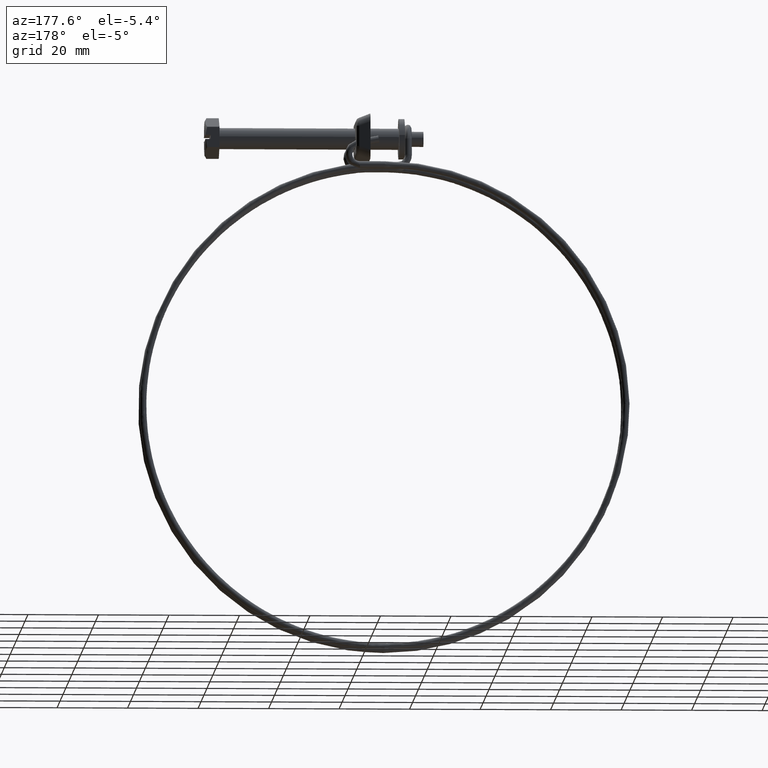
[diagram: clean part render]
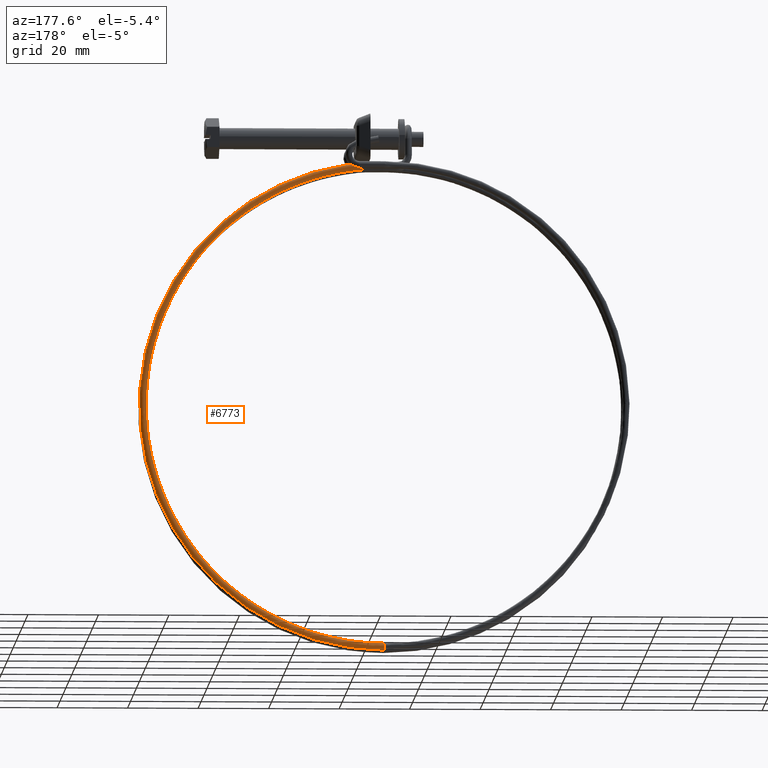
[diagram: same view with one face highlighted and labeled with its STEP entity id]
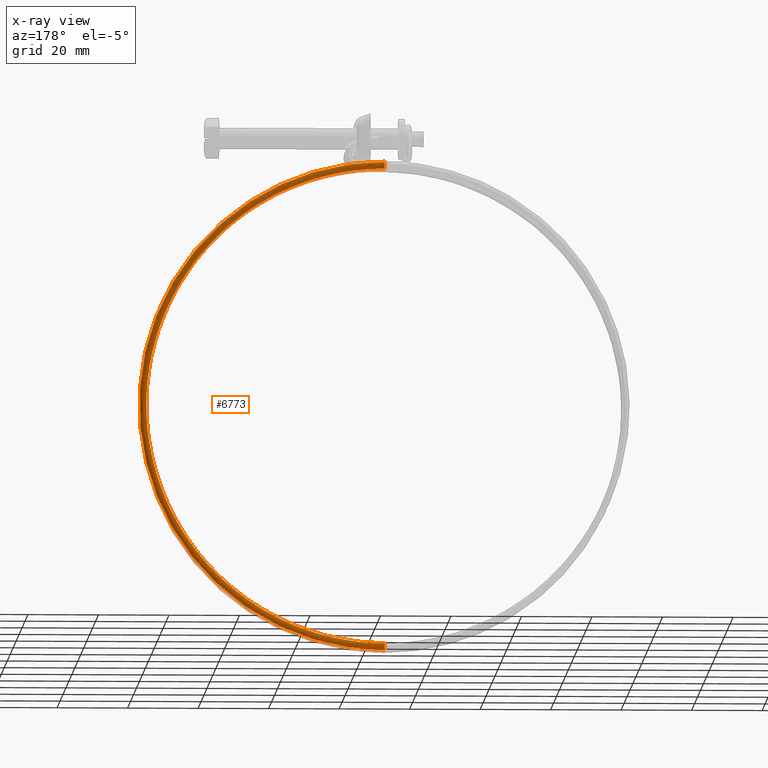
[diagram: x-ray of the same camera — body ghosted, the highlighted face saturated]
A machine part, auxiliary view. The second image highlights one B-rep face of the part: STEP entity #6773.
The next image is the same camera in x-ray: the body ghosted, the highlighted face saturated — about 0% of this face is hidden behind the body in this view.
In plain terms, the highlighted face is a freeform B-spline surface patch.
Its self-contained STEP definition (entity closure, byte-faithful):
#4836=CARTESIAN_POINT('',(-46.800000081168392,5.133887822061459,-8.401937985322835));
#4837=VERTEX_POINT('',#4836);
#4843=CARTESIAN_POINT('',(-46.800000147059912,4.300002000001339,-8.850001000000098));
#4844=VERTEX_POINT('',#4843);
#4845=CARTESIAN_POINT('',(-46.800000081168392,5.133887822061459,-8.401937985322835));
#4846=CARTESIAN_POINT('',(-46.800000147059976,4.837321382124287,-8.850001000000098));
#4847=CARTESIAN_POINT('',(-46.800000147059912,4.300002000001339,-8.850001000000098));
#4855=(BOUNDED_CURVE()B_SPLINE_CURVE(2,(#4845,#4846,#4847),.UNSPECIFIED.,.F.,.U.)B_SPLINE_CURVE_WITH_KNOTS((3,3),(0.344612684639767,0.500000000000000),.UNSPECIFIED.)CURVE()GEOMETRIC_REPRESENTATION_ITEM()RATIONAL_B_SPLINE_CURVE((0.862207930027865,0.817952436165441,1.0))REPRESENTATION_ITEM(''));
#4856=EDGE_CURVE('',#4837,#4844,#4855,.T.);
#4858=CARTESIAN_POINT('',(-46.800000003458287,3.300317811073485,-7.875131109583109));
#4859=VERTEX_POINT('',#4858);
#4860=CARTESIAN_POINT('',(-46.800000147059912,4.300002000001339,-8.850001000000098));
#4861=CARTESIAN_POINT('',(-46.800000147059784,3.324824151415571,-8.850001000000098));
#4862=CARTESIAN_POINT('',(-46.800000003458294,3.300317811073485,-7.875131109583109));
#4870=(BOUNDED_CURVE()B_SPLINE_CURVE(2,(#4860,#4861,#4862),.UNSPECIFIED.,.F.,.U.)B_SPLINE_CURVE_WITH_KNOTS((3,3),(0.500000000000000,0.745579886819964),.UNSPECIFIED.)CURVE()GEOMETRIC_REPRESENTATION_ITEM()RATIONAL_B_SPLINE_CURVE((1.0,0.712285265893829,0.989826146493495))REPRESENTATION_ITEM(''));
#4871=EDGE_CURVE('',#4844,#4859,#4870,.T.);
#4873=CARTESIAN_POINT('',(-46.799999852934548,4.274871902389497,-6.850316810771282));
#4874=VERTEX_POINT('',#4873);
#4890=CARTESIAN_POINT('',(-46.799999852942292,4.300002000001340,-6.850001000000122));
#4891=VERTEX_POINT('',#4890);
#4892=CARTESIAN_POINT('',(-46.799999852934548,4.274871902389497,-6.850316810771283));
#4893=CARTESIAN_POINT('',(-46.799999852942292,4.287434965708429,-6.850001000000122));
#4894=CARTESIAN_POINT('',(-46.799999852942292,4.300002000001340,-6.850001000000122));
#4902=(BOUNDED_CURVE()B_SPLINE_CURVE(2,(#4892,#4893,#4894),.UNSPECIFIED.,.F.,.U.)B_SPLINE_CURVE_WITH_KNOTS((3,3),(0.995579891010686,1.0),.UNSPECIFIED.)CURVE()GEOMETRIC_REPRESENTATION_ITEM()RATIONAL_B_SPLINE_CURVE((0.989826155965741,0.994821520202454,1.0))REPRESENTATION_ITEM(''));
#4903=EDGE_CURVE('',#4874,#4891,#4902,.T.);
#4905=CARTESIAN_POINT('',(-46.799999994795698,5.299375311462738,-7.814603481179203));
#4906=VERTEX_POINT('',#4905);
#4907=CARTESIAN_POINT('',(-46.799999852942292,4.300002000001340,-6.850001000000122));
#4908=CARTESIAN_POINT('',(-46.799999852942399,5.265209364748347,-6.850001000000123));
#4909=CARTESIAN_POINT('',(-46.799999994795691,5.299375311462739,-7.814603481179203));
#4917=(BOUNDED_CURVE()B_SPLINE_CURVE(2,(#4907,#4908,#4909),.UNSPECIFIED.,.F.,.U.)B_SPLINE_CURVE_WITH_KNOTS((3,3),(0.0,0.243786150518836),.UNSPECIFIED.)CURVE()GEOMETRIC_REPRESENTATION_ITEM()RATIONAL_B_SPLINE_CURVE((1.0,0.714386758689589,0.985801938469358))REPRESENTATION_ITEM(''));
#4918=EDGE_CURVE('',#4891,#4906,#4917,.T.);
#4958=CARTESIAN_POINT('',(-46.799999994795698,5.299375311462738,-7.814603481179203));
#4959=CARTESIAN_POINT('',(-46.799999997397649,5.300002000001340,-7.832296692619056));
#4960=CARTESIAN_POINT('',(-46.800000000001219,5.300002000001340,-7.850001000000110));
#4961=CARTESIAN_POINT('',(-46.800000044260898,5.300002000001341,-8.150966839146765));
#4962=CARTESIAN_POINT('',(-46.800000081168392,5.133887822061459,-8.401937985322835));
#4970=(BOUNDED_CURVE()B_SPLINE_CURVE(2,(#4958,#4959,#4960,#4961,#4962),.UNSPECIFIED.,.F.,.U.)B_SPLINE_CURVE_WITH_KNOTS((3,2,3),(0.243786150518836,0.250000000000000,0.344612684639767),.UNSPECIFIED.)CURVE()GEOMETRIC_REPRESENTATION_ITEM()RATIONAL_B_SPLINE_CURVE((0.985801938469358,0.992720022496959,1.0,0.889154345021107,0.862207930027865))REPRESENTATION_ITEM(''));
#4971=EDGE_CURVE('',#4906,#4837,#4970,.T.);
#6621=CARTESIAN_POINT('',(-46.799999999750213,3.300325003221706,-144.824871094048800));
#6622=VERTEX_POINT('',#6621);
#6623=CARTESIAN_POINT('',(-46.800000003458294,3.300317811073485,-7.875131109583109));
#6624=CARTESIAN_POINT('',(21.245975607966816,3.300317811073485,-7.875131106383288));
#6625=CARTESIAN_POINT('',(21.673518269128710,3.300321384552944,-75.919763635631796));
#6626=CARTESIAN_POINT('',(22.106467524863881,3.300325003221706,-144.824871093797380));
#6627=CARTESIAN_POINT('',(-46.799999999750213,3.300325003221707,-144.824871094048830));
#6635=(BOUNDED_CURVE()B_SPLINE_CURVE(2,(#6623,#6624,#6625,#6626,#6627),.UNSPECIFIED.,.F.,.U.)B_SPLINE_CURVE_WITH_KNOTS((3,2,3),(-3.792515020872442,-2.0,-0.192000658024789),.UNSPECIFIED.)CURVE()GEOMETRIC_REPRESENTATION_ITEM()RATIONAL_B_SPLINE_CURVE((0.934811369287551,0.685815180517852,1.0,0.683101151026423,0.939155212469775))REPRESENTATION_ITEM(''));
#6636=EDGE_CURVE('',#4859,#6622,#6635,.T.);
#6638=CARTESIAN_POINT('',(-46.799999999966360,4.274872093362018,-145.849677996761610));
#6639=VERTEX_POINT('',#6638);
#6651=CARTESIAN_POINT('',(-46.799999852934548,4.274871902389498,-6.850316810771282));
#6652=CARTESIAN_POINT('',(22.264370940379305,4.274871902389497,-6.850316956969440));
#6653=CARTESIAN_POINT('',(22.698312324991360,4.274871997275804,-75.913320905040280));
#6654=CARTESIAN_POINT('',(23.137741221740637,4.274872093362019,-145.849677996727710));
#6655=CARTESIAN_POINT('',(-46.799999999966360,4.274872093362019,-145.849677996761560));
#6663=(BOUNDED_CURVE()B_SPLINE_CURVE(2,(#6651,#6652,#6653,#6654,#6655),.UNSPECIFIED.,.F.,.U.)B_SPLINE_CURVE_WITH_KNOTS((3,2,3),(-3.792515018212278,-2.0,-0.192000658020882),.UNSPECIFIED.)CURVE()GEOMETRIC_REPRESENTATION_ITEM()RATIONAL_B_SPLINE_CURVE((0.934811368548510,0.685815180984115,1.0,0.683101151025738,0.939155212470882))REPRESENTATION_ITEM(''));
#6664=EDGE_CURVE('',#4874,#6639,#6663,.T.);
#6669=CARTESIAN_POINT('',(-56.652549252385640,4.253673468955141,-7.552767734651405));
#6670=CARTESIAN_POINT('',(22.197299819346540,4.253673468955140,3.739430870575157));
#6671=CARTESIAN_POINT('',(22.697779448536004,4.253673468955141,-75.913327826883602));
#6672=CARTESIAN_POINT('',(23.204289178162774,4.253673468955141,-156.525794186832230));
#6673=CARTESIAN_POINT('',(-56.603689403971970,4.253673468955140,-145.154213849272000));
#6674=CARTESIAN_POINT('',(-56.652586858138783,4.264225932556893,-7.552505145578850));
#6675=CARTESIAN_POINT('',(22.197563172044148,4.264225932556892,3.739736560333860));
#6676=CARTESIAN_POINT('',(22.698044711491836,4.264225932556890,-75.913326160165326));
#6677=CARTESIAN_POINT('',(23.204556374392865,4.264225932556893,-156.526100206219640));
#6678=CARTESIAN_POINT('',(-56.603726823234133,4.264225932556893,-145.154476464984700));
#6679=CARTESIAN_POINT('',(-56.656187365855551,5.274556093841301,-7.527363939692031));
#6680=CARTESIAN_POINT('',(22.222777490092383,5.274556093841301,3.769004378245221));
#6681=CARTESIAN_POINT('',(22.723441924415397,5.274556093841301,-75.913166582670314));
#6682=CARTESIAN_POINT('',(23.230138685826816,5.274556093841301,-156.555399583941290));
#6683=CARTESIAN_POINT('',(-56.607309475646993,5.274556093841301,-145.179620221484950));
#6684=CARTESIAN_POINT('',(-56.514467107015186,5.299686189284640,-8.516951655125688));
#6685=CARTESIAN_POINT('',(21.230311993173803,5.299686189284639,2.616988313740192));
#6686=CARTESIAN_POINT('',(21.723777468042151,5.299686189284639,-75.919447742351664));
#6687=CARTESIAN_POINT('',(22.223188532305645,5.299686189284640,-155.402141287828950));
#6688=CARTESIAN_POINT('',(-56.466292022769508,5.299686189284642,-144.189932110872770));
#6689=CARTESIAN_POINT('',(-56.372746848174813,5.324816284727977,-9.506539370559359));
#6690=CARTESIAN_POINT('',(20.237846496255202,5.324816284727976,1.464972249235135));
#6691=CARTESIAN_POINT('',(20.724113011668880,5.324816284727977,-75.925728902033029));
#6692=CARTESIAN_POINT('',(21.216238378784453,5.324816284727975,-154.248882991716610));
#6693=CARTESIAN_POINT('',(-56.325274569892017,5.324816284727977,-143.200244000260880));
#6694=CARTESIAN_POINT('',(-56.369184279446536,4.325132095444677,-9.531415660496728));
#6695=CARTESIAN_POINT('',(20.212897864548147,4.325132095444677,1.436012829886882));
#6696=CARTESIAN_POINT('',(20.698983412272110,4.325132095444677,-75.925886798040565));
#6697=CARTESIAN_POINT('',(21.190925631282838,4.325132095444677,-154.219892345107580));
#6698=CARTESIAN_POINT('',(-56.321729668324124,4.325132095444678,-143.175365186585940));
#6699=CARTESIAN_POINT('',(-56.365621710718237,3.325447906161378,-9.556291950434071));
#6700=CARTESIAN_POINT('',(20.187949232841117,3.325447906161378,1.407053410538630));
#6701=CARTESIAN_POINT('',(20.673853812875347,3.325447906161378,-75.926044694048102));
#6702=CARTESIAN_POINT('',(21.165612883781240,3.325447906161378,-154.190901698498610));
#6703=CARTESIAN_POINT('',(-56.318184766756218,3.325447906161379,-143.150486372911190));
#6704=CARTESIAN_POINT('',(-56.508838628185316,3.300052420473601,-8.556253541476977));
#6705=CARTESIAN_POINT('',(21.190895814537861,3.300052420473601,2.571235518170979));
#6706=CARTESIAN_POINT('',(21.684075379747132,3.300052420473600,-75.919697201212244));
#6707=CARTESIAN_POINT('',(22.183197089528122,3.300052420473601,-155.356339156516530));
#6708=CARTESIAN_POINT('',(-56.460691456169798,3.300052420473601,-144.150626237285510));
#6709=CARTESIAN_POINT('',(-56.510322249974315,3.299789341945068,-8.545893880065499));
#6710=CARTESIAN_POINT('',(21.201285602477121,3.299789341945066,2.583295587412668));
#6711=CARTESIAN_POINT('',(21.694540531174940,3.299789341945065,-75.919631445861228));
#6712=CARTESIAN_POINT('',(22.193738512472272,3.299789341945068,-155.368412230263600));
#6713=CARTESIAN_POINT('',(-56.462167720519183,3.299789341945066,-144.160986949700340));
#6721=(BOUNDED_SURFACE()B_SPLINE_SURFACE(2,2,((#6669,#6674,#6679,#6684,#6689,#6694,#6699,#6704,#6709),(#6670,#6675,#6680,#6685,#6690,#6695,#6700,#6705,#6710),(#6671,#6676,#6681,#6686,#6691,#6696,#6701,#6706,#6711),(#6672,#6677,#6682,#6687,#6692,#6697,#6702,#6707,#6712),(#6673,#6678,#6683,#6688,#6693,#6698,#6703,#6708,#6713)),.UNSPECIFIED.,.F.,.F.,.U.)B_SPLINE_SURFACE_WITH_KNOTS((3,2,3),(3,1,2,2,1,3),(0.0,126.386581394555510,253.765377973753400),(0.0,0.025063502052038,1.681917751544486,3.338772001036933,4.995626250529381,5.020480122144020),.UNSPECIFIED.)GEOMETRIC_REPRESENTATION_ITEM()RATIONAL_B_SPLINE_SURFACE(((0.999221514761833,0.994833206937992,0.700350304555242,0.990444899114151,0.700350304555242,0.990444899114151,0.700350304555242,0.994796503252823,0.999148107391495),(0.660090421465882,0.657191484725462,0.462654697560047,0.654292547985041,0.462654697560047,0.654292547985041,0.462654697560047,0.657167238098808,0.660041928212575),(1.008861286130639,1.004430643065320,0.707106781186548,1.0,0.707106781186548,1.0,0.707106781186548,1.004393585289363,1.008787170578726),(0.657352347976886,0.654465436106964,0.460735592963536,0.651578524237042,0.460735592963536,0.651578524237042,0.460735592963536,0.654441290055995,0.657304055874947),(1.004588702165753,1.000176823121588,0.704112144424989,0.995764944077423,0.704112144424989,0.995764944077423,0.704112144424989,1.000139922287385,1.004514900497347)))REPRESENTATION_ITEM('')SURFACE());
#6722=ORIENTED_EDGE('',*,*,#4871,.F.);
#6723=ORIENTED_EDGE('',*,*,#4856,.F.);
#6724=ORIENTED_EDGE('',*,*,#4971,.F.);
#6725=ORIENTED_EDGE('',*,*,#4918,.F.);
#6726=ORIENTED_EDGE('',*,*,#4903,.F.);
#6727=ORIENTED_EDGE('',*,*,#6664,.T.);
#6728=CARTESIAN_POINT('',(-46.799999999998832,4.300002000001341,-145.850000999999990));
#6729=VERTEX_POINT('',#6728);
#6730=CARTESIAN_POINT('',(-46.799999999966360,4.274872093362018,-145.849677996761610));
#6731=CARTESIAN_POINT('',(-46.799999999977182,4.283245472036255,-145.849895397774500));
#6732=CARTESIAN_POINT('',(-46.799999999988003,4.291622910329201,-145.850003397795690));
#6733=CARTESIAN_POINT('',(-46.799999999998832,4.300002000001341,-145.850000999999990));
#6734=B_SPLINE_CURVE_WITH_KNOTS('',3,(#6730,#6731,#6732,#6733),.UNSPECIFIED.,.F.,.U.,(4,4),(0.995999309432652,1.0),.UNSPECIFIED.);
#6735=EDGE_CURVE('',#6639,#6729,#6734,.T.);
#6736=ORIENTED_EDGE('',*,*,#6735,.T.);
#6737=CARTESIAN_POINT('',(-46.799999999998832,5.028949982885202,-145.534537745304700));
#6738=VERTEX_POINT('',#6737);
#6739=CARTESIAN_POINT('',(-46.799999999998761,4.300002000001343,-145.850000999999990));
#6740=CARTESIAN_POINT('',(-46.799999999998747,4.561801387800491,-145.850001000000110));
#6741=CARTESIAN_POINT('',(-46.799999999998782,4.821988658764623,-145.742227903609890));
#6742=CARTESIAN_POINT('',(-46.799999999998782,5.014513586084808,-145.549702976289690));
#6743=CARTESIAN_POINT('',(-46.799999999998782,5.021794635740076,-145.542178063955110));
#6744=CARTESIAN_POINT('',(-46.799999999998782,5.028949982885187,-145.534537745304900));
#6745=B_SPLINE_CURVE_WITH_KNOTS('',3,(#6739,#6740,#6741,#6742,#6743,#6744),.UNSPECIFIED.,.F.,.U.,(4,2,4),(0.0,0.125000000000000,0.129999999999993),.UNSPECIFIED.);
#6746=EDGE_CURVE('',#6729,#6738,#6745,.T.);
#6747=ORIENTED_EDGE('',*,*,#6746,.T.);
#6748=CARTESIAN_POINT('',(-46.799999999998803,4.300002000001339,-143.850000999999990));
#6749=VERTEX_POINT('',#6748);
#6750=CARTESIAN_POINT('',(-46.799999999998782,5.028949982885188,-145.534537745304900));
#6751=CARTESIAN_POINT('',(-46.799999999998782,5.200678314368131,-145.351170097699200));
#6752=CARTESIAN_POINT('',(-46.799999999998782,5.300002000001340,-145.101328412287190));
#6753=CARTESIAN_POINT('',(-46.799999999998782,5.300002000001340,-144.588201612200890));
#6754=CARTESIAN_POINT('',(-46.799999999998789,5.192228903611150,-144.328014341236700));
#6755=CARTESIAN_POINT('',(-46.799999999998789,4.821988658764620,-143.957774096390210));
#6756=CARTESIAN_POINT('',(-46.799999999998811,4.561801387800488,-143.850000999999990));
#6757=CARTESIAN_POINT('',(-46.799999999998803,4.300002000001339,-143.850000999999990));
#6758=B_SPLINE_CURVE_WITH_KNOTS('',3,(#6750,#6751,#6752,#6753,#6754,#6755,#6756,#6757),.UNSPECIFIED.,.F.,.U.,(4,2,2,4),(0.129999999999993,0.250000000000000,0.375000000000000,0.500000000000000),.UNSPECIFIED.);
#6759=EDGE_CURVE('',#6738,#6749,#6758,.T.);
#6760=ORIENTED_EDGE('',*,*,#6759,.T.);
#6761=CARTESIAN_POINT('',(-46.799999999998803,4.300002000001339,-143.850000999999990));
#6762=CARTESIAN_POINT('',(-46.799999999965422,4.038201646738445,-143.850000974656810));
#6763=CARTESIAN_POINT('',(-46.799999999918867,3.778013028669842,-143.957774035685700));
#6764=CARTESIAN_POINT('',(-46.799999999827158,3.413694996567173,-144.322089344414200));
#6765=CARTESIAN_POINT('',(-46.799999999782543,3.306973642226583,-144.571623483534100));
#6766=CARTESIAN_POINT('',(-46.799999999750213,3.300325003221706,-144.824871094048800));
#6767=B_SPLINE_CURVE_WITH_KNOTS('',3,(#6761,#6762,#6763,#6764,#6765,#6766),.UNSPECIFIED.,.F.,.U.,(4,2,4),(0.500000000000000,0.625000000000000,0.745999309542240),.UNSPECIFIED.);
#6768=EDGE_CURVE('',#6749,#6622,#6767,.T.);
#6769=ORIENTED_EDGE('',*,*,#6768,.T.);
#6770=ORIENTED_EDGE('',*,*,#6636,.F.);
#6771=EDGE_LOOP('',(#6722,#6723,#6724,#6725,#6726,#6727,#6736,#6747,#6760,#6769,#6770));
#6772=FACE_OUTER_BOUND('',#6771,.T.);
#6773=ADVANCED_FACE('',(#6772),#6721,.T.);